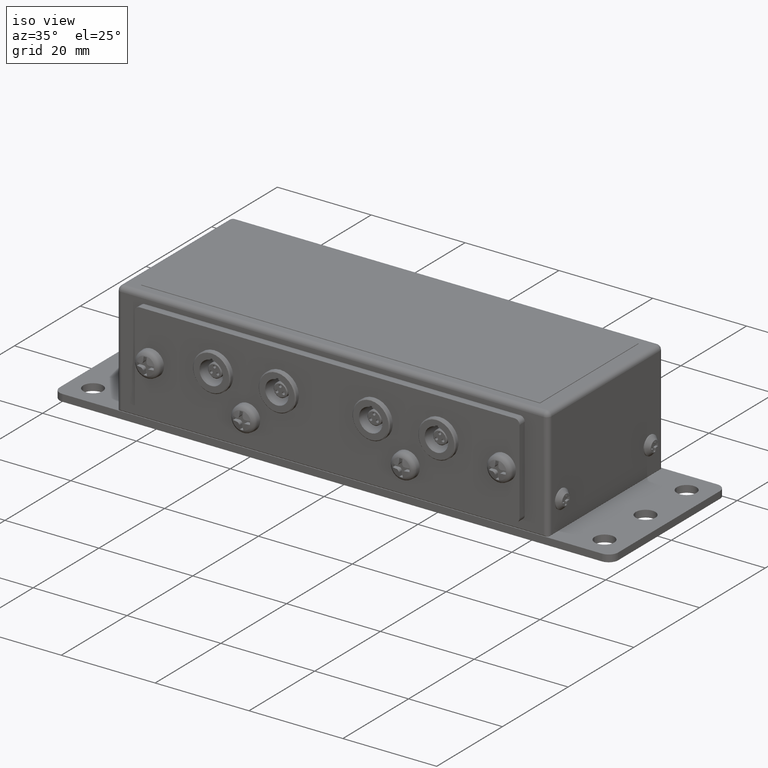
[diagram: clean part render]
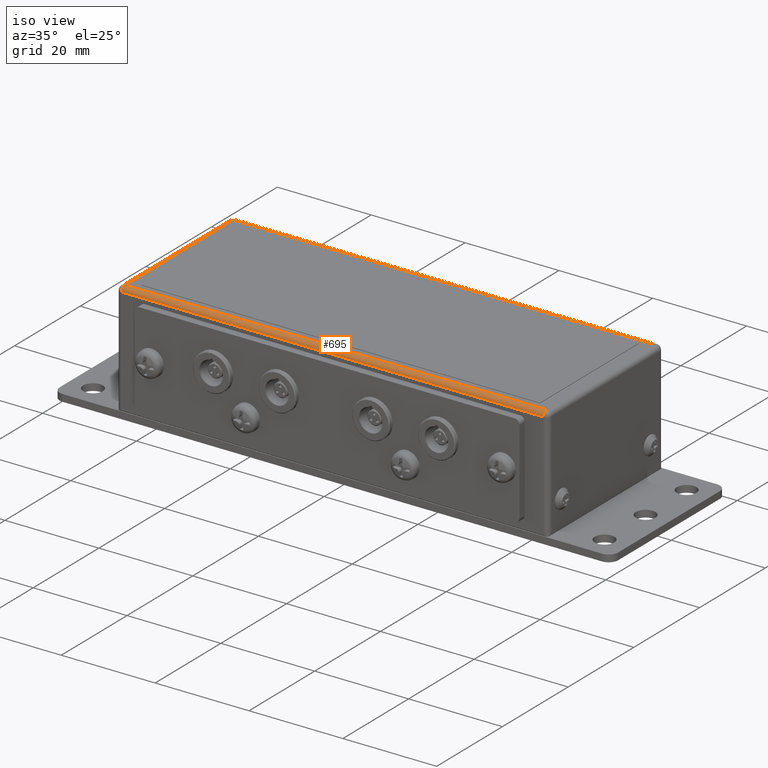
[diagram: same view with one face highlighted and labeled with its STEP entity id]
A machine part, iso view. The second image highlights one B-rep face of the part: STEP entity #695.
In plain terms, the highlighted cylindrical surface (edge-blend (fillet) strip) has radius 1 mm, axis along (1, -0, -0).
Its self-contained STEP definition (entity closure, byte-faithful):
#695 = ADVANCED_FACE( '', ( #1606 ), #1607, .T. );
#1606 = FACE_OUTER_BOUND( '', #2727, .T. );
#1607 = CYLINDRICAL_SURFACE( '', #2728, 1.00000000000000 );
#2727 = EDGE_LOOP( '', ( #4665, #4666, #4667, #4668 ) );
#2728 = AXIS2_PLACEMENT_3D( '', #4669, #4670, #4671 );
#4665 = ORIENTED_EDGE( '', *, *, #6496, .F. );
#4666 = ORIENTED_EDGE( '', *, *, #6351, .T. );
#4667 = ORIENTED_EDGE( '', *, *, #6254, .F. );
#4668 = ORIENTED_EDGE( '', *, *, #6599, .T. );
#4669 = CARTESIAN_POINT( '', ( 45.9999999999999, -16.5000000000000, -1.00000000000000 ) );
#4670 = DIRECTION( '', ( 1.00000000000000, -0.000000000000000, -0.000000000000000 ) );
#4671 = DIRECTION( '', ( 0.000000000000000, 0.000000000000000, 1.00000000000000 ) );
#6254 = EDGE_CURVE( '', #7510, #7511, #7512, .T. );
#6351 = EDGE_CURVE( '', #6920, #7511, #7666, .F. );
#6496 = EDGE_CURVE( '', #6920, #7825, #7887, .F. );
#6599 = EDGE_CURVE( '', #7510, #7825, #8030, .T. );
#6920 = VERTEX_POINT( '', #8410 );
#7510 = VERTEX_POINT( '', #9180 );
#7511 = VERTEX_POINT( '', #9181 );
#7512 = LINE( '', #9182, #9183 );
#7666 = CIRCLE( '', #9389, 1.00000000000000 );
#7825 = VERTEX_POINT( '', #9602 );
#7887 = LINE( '', #9686, #9687 );
#8030 = CIRCLE( '', #9888, 1.00000000000000 );
#8410 = CARTESIAN_POINT( '', ( -45.0000000000001, -16.5000000000000, 0.000000000000000 ) );
#9180 = CARTESIAN_POINT( '', ( 44.9999999999999, -17.5000000000000, -1.00000000000000 ) );
#9181 = CARTESIAN_POINT( '', ( -45.0000000000001, -17.5000000000000, -1.00000000000000 ) );
#9182 = CARTESIAN_POINT( '', ( 45.9999999999999, -17.5000000000000, -1.00000000000000 ) );
#9183 = VECTOR( '', #10845, 1000.00000000000 );
#9389 = AXIS2_PLACEMENT_3D( '', #10974, #10975, #10976 );
#9602 = CARTESIAN_POINT( '', ( 44.9999999999999, -16.5000000000000, 0.000000000000000 ) );
#9686 = CARTESIAN_POINT( '', ( -46.0000000000001, -16.5000000000000, 0.000000000000000 ) );
#9687 = VECTOR( '', #11143, 1000.00000000000 );
#9888 = AXIS2_PLACEMENT_3D( '', #11266, #11267, #11268 );
#10845 = DIRECTION( '', ( -1.00000000000000, 0.000000000000000, 0.000000000000000 ) );
#10974 = CARTESIAN_POINT( '', ( -45.0000000000001, -16.5000000000000, -1.00000000000000 ) );
#10975 = DIRECTION( '', ( -1.00000000000000, 0.000000000000000, 0.000000000000000 ) );
#10976 = DIRECTION( '', ( 0.000000000000000, 0.000000000000000, 1.00000000000000 ) );
#11143 = DIRECTION( '', ( -1.00000000000000, 0.000000000000000, 0.000000000000000 ) );
#11266 = CARTESIAN_POINT( '', ( 44.9999999999999, -16.5000000000000, -1.00000000000000 ) );
#11267 = DIRECTION( '', ( -1.00000000000000, 0.000000000000000, 0.000000000000000 ) );
#11268 = DIRECTION( '', ( 0.000000000000000, 0.000000000000000, 1.00000000000000 ) );